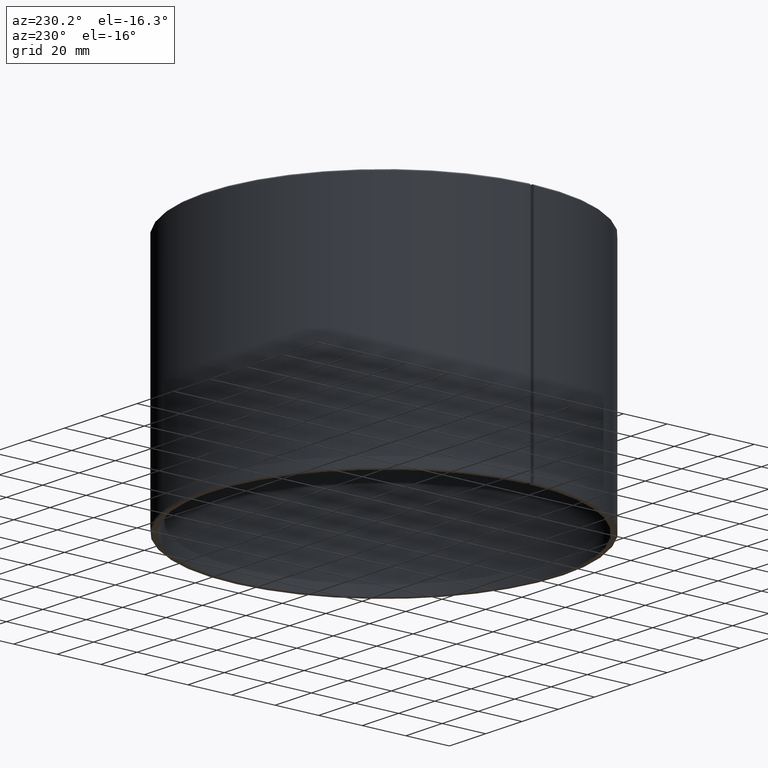
[diagram: clean part render]
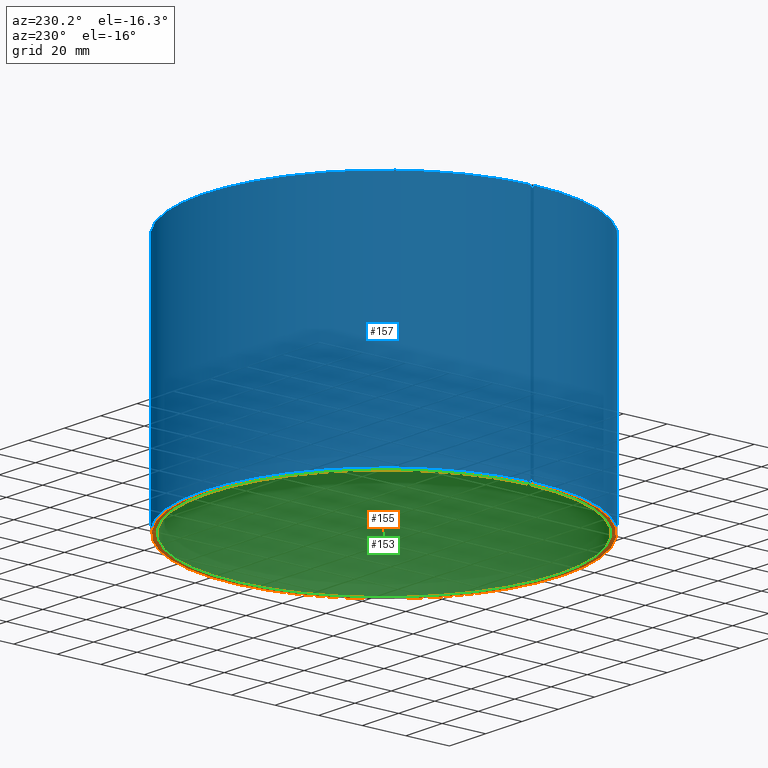
[diagram: same view with three faces highlighted in distinct colors, each labeled with its STEP entity id]
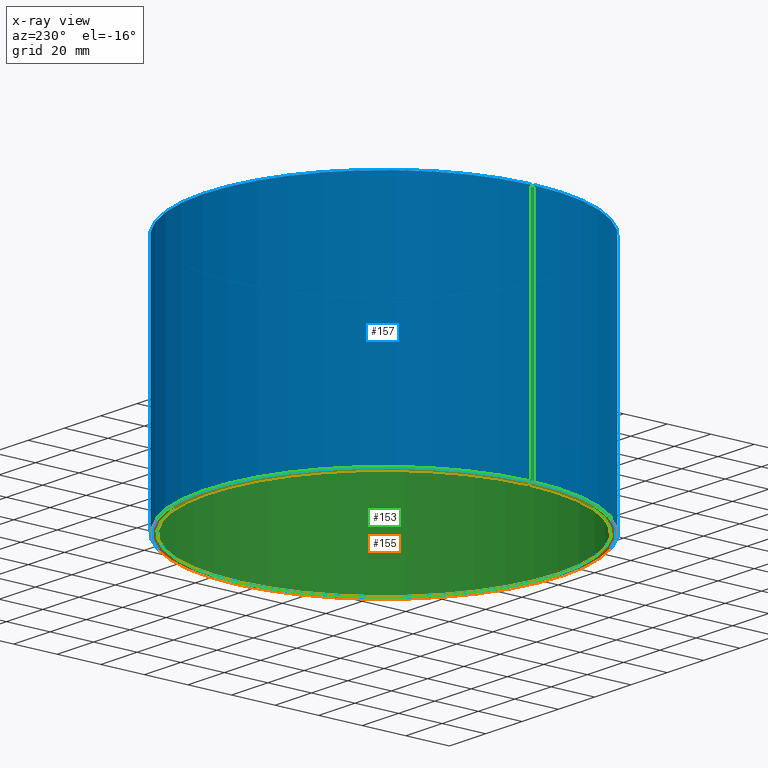
[diagram: x-ray of the same camera — body ghosted, the three highlighted faces saturated]
A machine part, auxiliary view with three faces highlighted in distinct colors.
The next image is the same camera in x-ray (body ghosted, the three faces saturated) — at least one of them is partly hidden behind the body in this view.
Their STEP definitions:

[orange] entity #155 — the highlighted planar face has unit normal (-0, 0, -1).
#155=ADVANCED_FACE('',(#169),#170,.T.);
#169=FACE_OUTER_BOUND('',#190,.T.);
#170=PLANE('',#191);
#190=EDGE_LOOP('',(#220,#221,#222,#223));
#191=AXIS2_PLACEMENT_3D('',#224,#225,#226);
#220=ORIENTED_EDGE('',*,*,#291,.T.);
#221=ORIENTED_EDGE('',*,*,#292,.F.);
#222=ORIENTED_EDGE('',*,*,#288,.F.);
#223=ORIENTED_EDGE('',*,*,#293,.T.);
#224=CARTESIAN_POINT('',(0.00139968299627014,0.0801877851515426,8.28498479448179E-018));
#225=DIRECTION('',(6.12323399573677E-017,0.0,-1.0));
#226=DIRECTION('',(-1.0,0.0,-6.12323399573677E-017));
#288=EDGE_CURVE('',#316,#317,#318,.T.);
#291=EDGE_CURVE('',#321,#322,#323,.T.);
#292=EDGE_CURVE('',#317,#322,#324,.T.);
#293=EDGE_CURVE('',#316,#321,#325,.T.);
#316=VERTEX_POINT('',#358);
#317=VERTEX_POINT('',#359);
#318=CIRCLE('',#360,0.0802);
#321=VERTEX_POINT('',#365);
#322=VERTEX_POINT('',#366);
#323=CIRCLE('',#367,0.082);
#324=LINE('',#368,#369);
#325=LINE('',#370,#371);
#358=CARTESIAN_POINT('',(0.00139968299627014,0.0801877851515426,8.19011710438931E-018));
#359=CARTESIAN_POINT('',(-3.46944695195362E-018,0.0802,8.10441123932915E-018));
#360=AXIS2_PLACEMENT_3D('',#412,#413,#414);
#365=CARTESIAN_POINT('',(0.00143109732785725,0.0819875110028241,8.38177605760555E-018));
#366=CARTESIAN_POINT('',(-3.46944695195362E-018,0.082,8.29414661951411E-018));
#367=AXIS2_PLACEMENT_3D('',#417,#418,#419);
#368=CARTESIAN_POINT('',(-3.46944695195362E-018,0.0802,8.11418404168857E-018));
#369=VECTOR('',#420,1.0);
#370=CARTESIAN_POINT('',(0.00139968299627014,0.0801877851515426,8.19988990674873E-018));
#371=VECTOR('',#421,1.0);
#412=CARTESIAN_POINT('',(-3.46944695195362E-018,-2.60208521396521E-018,8.10441123932915E-018));
#413=DIRECTION('',(6.12323399573677E-017,0.0,-1.0));
#414=DIRECTION('',(-1.0,0.0,-6.12323399573677E-017));
#417=CARTESIAN_POINT('',(-3.46944695195362E-018,-2.60208521396521E-018,8.29414661951411E-018));
#418=DIRECTION('',(6.12323399573677E-017,0.0,-1.0));
#419=DIRECTION('',(-1.0,0.0,-6.12323399573677E-017));
#420=DIRECTION('',(0.0,1.0,9.99792099030782E-017));
#421=DIRECTION('',(0.0174524064372836,0.999847695156391,1.0104786158712E-016));

[blue] entity #157 — the highlighted cylindrical surface (partial cylindrical patch) has radius 82.5 mm, axis along (-0, 0, -1).
#157=ADVANCED_FACE('',(#173),#174,.T.);
#173=FACE_OUTER_BOUND('',#194,.T.);
#174=CYLINDRICAL_SURFACE('',#195,0.0825);
#194=EDGE_LOOP('',(#234,#235,#236,#237));
#195=AXIS2_PLACEMENT_3D('',#238,#239,#240);
#234=ORIENTED_EDGE('',*,*,#297,.T.);
#235=ORIENTED_EDGE('',*,*,#298,.F.);
#236=ORIENTED_EDGE('',*,*,#294,.F.);
#237=ORIENTED_EDGE('',*,*,#299,.T.);
#238=CARTESIAN_POINT('',(-3.46944695195362E-018,-2.60208521396521E-018,-5.42101086242752E-020));
#239=DIRECTION('',(6.12323399573677E-017,0.0,-1.0));
#240=DIRECTION('',(-1.0,0.0,-6.12323399573677E-017));
#294=EDGE_CURVE('',#326,#327,#328,.T.);
#297=EDGE_CURVE('',#331,#332,#333,.T.);
#298=EDGE_CURVE('',#327,#332,#334,.T.);
#299=EDGE_CURVE('',#326,#331,#335,.T.);
#326=VERTEX_POINT('',#372);
#327=VERTEX_POINT('',#373);
#328=CIRCLE('',#374,0.0825);
#331=VERTEX_POINT('',#379);
#332=VERTEX_POINT('',#380);
#333=CIRCLE('',#381,0.0825);
#334=LINE('',#382,#383);
#335=LINE('',#384,#385);
#372=CARTESIAN_POINT('',(0.00143982353107589,0.0824874348504023,0.0005));
#373=CARTESIAN_POINT('',(-3.46944695195362E-018,0.0825,0.0005));
#374=AXIS2_PLACEMENT_3D('',#422,#423,#424);
#379=CARTESIAN_POINT('',(0.00143982353107588,0.0824874348504023,0.1095));
#380=CARTESIAN_POINT('',(-1.04083408558608E-017,0.0825,0.1095));
#381=AXIS2_PLACEMENT_3D('',#427,#428,#429);
#382=CARTESIAN_POINT('',(-3.46944695195362E-018,0.0825,0.0005));
#383=VECTOR('',#430,1.0);
#384=CARTESIAN_POINT('',(0.00143982353107589,0.0824874348504023,0.0005));
#385=VECTOR('',#431,1.0);
#422=CARTESIAN_POINT('',(-3.46944695195362E-018,-2.60208521396521E-018,0.0005));
#423=DIRECTION('',(6.12323399573677E-017,0.0,-1.0));
#424=DIRECTION('',(-1.0,0.0,-6.12323399573677E-017));
#427=CARTESIAN_POINT('',(-1.04083408558608E-017,-2.60208521396521E-018,0.1095));
#428=DIRECTION('',(6.12323399573677E-017,0.0,-1.0));
#429=DIRECTION('',(-1.0,0.0,-6.12323399573677E-017));
#430=DIRECTION('',(-6.36595771000663E-017,0.0,1.0));
#431=DIRECTION('',(-6.36592074200929E-017,4.23611291340477E-020,1.0));

[green] entity #153 — the highlighted cylindrical surface (partial cylindrical patch) has radius 80 mm, axis along (-0, 0, -1).
#153=ADVANCED_FACE('',(#165),#166,.F.);
#165=FACE_OUTER_BOUND('',#186,.T.);
#166=CYLINDRICAL_SURFACE('',#187,0.08);
#186=EDGE_LOOP('',(#206,#207,#208,#209));
#187=AXIS2_PLACEMENT_3D('',#210,#211,#212);
#206=ORIENTED_EDGE('',*,*,#284,.T.);
#207=ORIENTED_EDGE('',*,*,#285,.F.);
#208=ORIENTED_EDGE('',*,*,#286,.F.);
#209=ORIENTED_EDGE('',*,*,#287,.T.);
#210=CARTESIAN_POINT('',(-3.46944695195362E-018,-2.60208521396521E-018,-5.42101086242752E-020));
#211=DIRECTION('',(6.12323399573677E-017,0.0,-1.0));
#212=DIRECTION('',(-1.0,0.0,-6.12323399573677E-017));
#284=EDGE_CURVE('',#308,#309,#310,.T.);
#285=EDGE_CURVE('',#311,#309,#312,.T.);
#286=EDGE_CURVE('',#313,#311,#314,.T.);
#287=EDGE_CURVE('',#313,#308,#315,.T.);
#308=VERTEX_POINT('',#348);
#309=VERTEX_POINT('',#349);
#310=CIRCLE('',#350,0.08);
#311=VERTEX_POINT('',#351);
#312=LINE('',#352,#353);
#313=VERTEX_POINT('',#354);
#314=CIRCLE('',#355,0.08);
#315=LINE('',#356,#357);
#348=CARTESIAN_POINT('',(0.00139619251498268,0.0799878156125113,0.000200000000000006));
#349=CARTESIAN_POINT('',(-3.46944695195362E-018,0.08,0.000200000000000006));
#350=AXIS2_PLACEMENT_3D('',#404,#405,#406);
#351=CARTESIAN_POINT('',(-1.04083408558608E-017,0.08,0.1098));
#352=CARTESIAN_POINT('',(-1.04083408558608E-017,0.08,0.1098));
#353=VECTOR('',#407,1.0);
#354=CARTESIAN_POINT('',(0.00139619251498267,0.0799878156125113,0.1098));
#355=AXIS2_PLACEMENT_3D('',#408,#409,#410);
#356=CARTESIAN_POINT('',(0.00139619251498267,0.0799878156125113,0.1098));
#357=VECTOR('',#411,1.0);
#404=CARTESIAN_POINT('',(-3.46944695195362E-018,-2.60208521396521E-018,0.000200000000000006));
#405=DIRECTION('',(6.12323399573677E-017,0.0,-1.0));
#406=DIRECTION('',(-1.0,0.0,-6.12323399573677E-017));
#407=DIRECTION('',(6.33110757655769E-017,2.53244303062308E-016,-1.0));
#408=CARTESIAN_POINT('',(-1.04083408558608E-017,-2.60208521396521E-018,0.1098));
#409=DIRECTION('',(6.12323399573677E-017,0.0,-1.0));
#410=DIRECTION('',(-1.0,0.0,-6.12323399573677E-017));
#411=DIRECTION('',(6.77304816690147E-017,2.53169453786134E-016,-1.0));